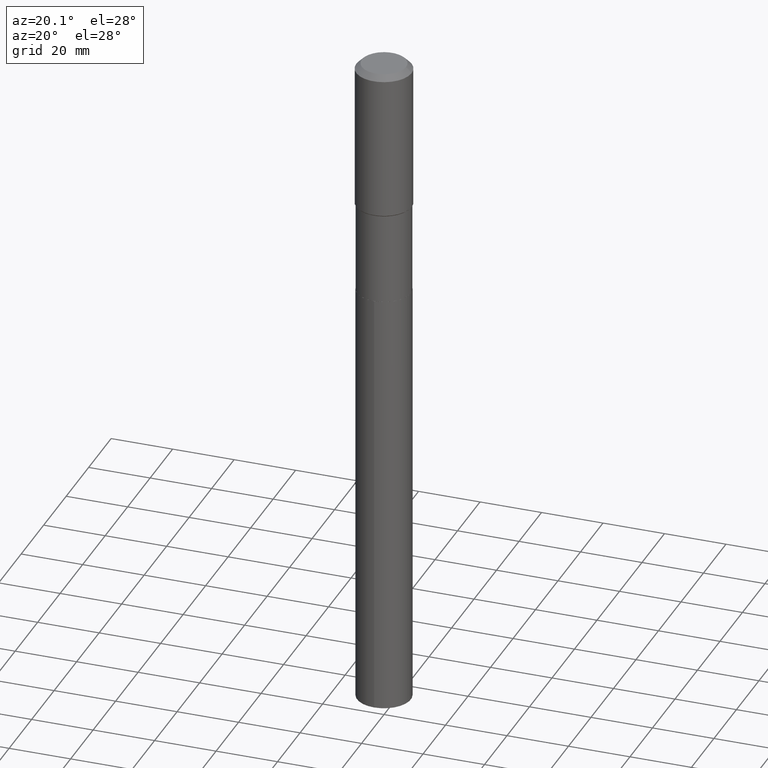
[diagram: clean part render]
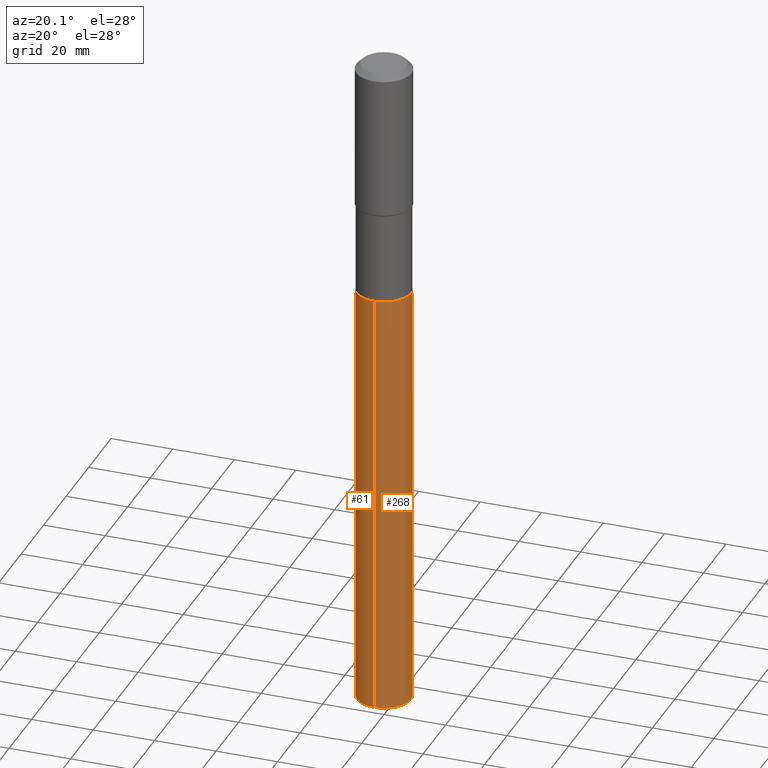
[diagram: same view with one multi-face feature highlighted, each face labeled with its STEP entity id]
A machine part, auxiliary view. The highlighted faces form ONE feature: a constant-radius fillet chain: 2 tangent blend faces with common blend radius 8.7312 mm. The faces share edges in the B-rep.
Their STEP definitions:
[1] entity #268 (Cylinder):
#2 = CARTESIAN_POINT ( 'NONE',  ( -2.400393420454578451E-15, -0.3437500000000107137, -3.070799999999999308 ) ) ;
#4 = DIRECTION ( 'NONE',  ( -2.445451521228947929E-29, 3.491506091884206227E-15, 1.000000000000000000 ) ) ;
#6 = CARTESIAN_POINT ( 'NONE',  ( 2.442490654175555015E-15, 0.3437499999999699130, -8.604693274007365389 ) ) ;
#11 = CARTESIAN_POINT ( 'NONE',  ( 7.509545610033318642E-29, -1.072164089531953388E-14, -3.070800000000000640 ) ) ;
#64 = VERTEX_POINT ( 'NONE', #410 ) ;
#66 = DIRECTION ( 'NONE',  ( -2.445451521228947929E-29, 3.491506091884206622E-15, 1.000000000000000000 ) ) ;
#80 = DIRECTION ( 'NONE',  ( -6.982962677686265922E-15, -1.000000000000000000, 3.178877665354778874E-15 ) ) ;
#88 = LINE ( 'NONE', #2, #390 ) ;
#92 = EDGE_LOOP ( 'NONE', ( #473, #398, #208, #438 ) ) ;
#112 = VECTOR ( 'NONE', #455, 39.37007874015748143 ) ;
#120 = AXIS2_PLACEMENT_3D ( 'NONE', #422, #344, #80 ) ;
#122 = DIRECTION ( 'NONE',  ( -6.982962677686265922E-15, -1.000000000000000000, 3.178877665354778874E-15 ) ) ;
#127 = CIRCLE ( 'NONE', #120, 0.3437500000000000000 ) ;
#140 = CARTESIAN_POINT ( 'NONE',  ( 2.442490654175418936E-15, 0.3437499999999892863, -3.070800000000001528 ) ) ;
#163 = CIRCLE ( 'NONE', #444, 0.3437500000000000000 ) ;
#175 = VERTEX_POINT ( 'NONE', #254 ) ;
#180 = EDGE_CURVE ( 'NONE', #64, #203, #163, .T. ) ;
#188 = FACE_OUTER_BOUND ( 'NONE', #92, .T. ) ;
#203 = VERTEX_POINT ( 'NONE', #6 ) ;
#206 = CARTESIAN_POINT ( 'NONE',  ( -2.400393420454578451E-15, -0.3437500000000107137, -3.070799999999999308 ) ) ;
#208 = ORIENTED_EDGE ( 'NONE', *, *, #226, .F. ) ;
#226 = EDGE_CURVE ( 'NONE', #362, #175, #127, .T. ) ;
#254 = CARTESIAN_POINT ( 'NONE',  ( 2.442490654175555409E-15, 0.3437499999999892863, -3.070800000000001528 ) ) ;
#268 = ADVANCED_FACE ( 'NONE', ( #188 ), #307, .T. ) ;
#293 = AXIS2_PLACEMENT_3D ( 'NONE', #11, #346, #122 ) ;
#307 = CYLINDRICAL_SURFACE ( 'NONE', #293, 0.3437500000000000000 ) ;
#343 = DIRECTION ( 'NONE',  ( -6.982962677686265922E-15, -1.000000000000000000, 3.178877665354778874E-15 ) ) ;
#344 = DIRECTION ( 'NONE',  ( -2.445451521228947929E-29, 3.491506091884206622E-15, 1.000000000000000000 ) ) ;
#346 = DIRECTION ( 'NONE',  ( -2.445451521228947929E-29, 3.491506091884206622E-15, 1.000000000000000000 ) ) ;
#362 = VERTEX_POINT ( 'NONE', #206 ) ;
#364 = LINE ( 'NONE', #140, #112 ) ;
#390 = VECTOR ( 'NONE', #4, 39.37007874015748143 ) ;
#398 = ORIENTED_EDGE ( 'NONE', *, *, #420, .T. ) ;
#406 = CARTESIAN_POINT ( 'NONE',  ( 2.104241333527326859E-28, -3.004326297335327895E-14, -8.604693274007363613 ) ) ;
#410 = CARTESIAN_POINT ( 'NONE',  ( -2.400393420454443161E-15, -0.3437500000000300315, -8.604693274007363613 ) ) ;
#420 = EDGE_CURVE ( 'NONE', #203, #175, #364, .T. ) ;
#422 = CARTESIAN_POINT ( 'NONE',  ( 7.509545610033318642E-29, -1.072164089531953388E-14, -3.070800000000000640 ) ) ;
#432 = EDGE_CURVE ( 'NONE', #64, #362, #88, .T. ) ;
#438 = ORIENTED_EDGE ( 'NONE', *, *, #432, .F. ) ;
#444 = AXIS2_PLACEMENT_3D ( 'NONE', #406, #66, #343 ) ;
#455 = DIRECTION ( 'NONE',  ( -2.445451521228947929E-29, 3.491506091884206227E-15, 1.000000000000000000 ) ) ;
#473 = ORIENTED_EDGE ( 'NONE', *, *, #180, .T. ) ;
[2] entity #61 (Cylinder):
#2 = CARTESIAN_POINT ( 'NONE',  ( -2.400393420454578451E-15, -0.3437500000000107137, -3.070799999999999308 ) ) ;
#4 = DIRECTION ( 'NONE',  ( -2.445451521228947929E-29, 3.491506091884206227E-15, 1.000000000000000000 ) ) ;
#6 = CARTESIAN_POINT ( 'NONE',  ( 2.442490654175555015E-15, 0.3437499999999699130, -8.604693274007365389 ) ) ;
#30 = DIRECTION ( 'NONE',  ( -6.982962677686265922E-15, -1.000000000000000000, 3.178877665354778874E-15 ) ) ;
#54 = ORIENTED_EDGE ( 'NONE', *, *, #432, .T. ) ;
#61 = ADVANCED_FACE ( 'NONE', ( #369 ), #213, .T. ) ;
#64 = VERTEX_POINT ( 'NONE', #410 ) ;
#88 = LINE ( 'NONE', #2, #390 ) ;
#97 = EDGE_LOOP ( 'NONE', ( #478, #396, #54, #393 ) ) ;
#111 = DIRECTION ( 'NONE',  ( -6.982962677686265922E-15, -1.000000000000000000, 3.178877665354778874E-15 ) ) ;
#112 = VECTOR ( 'NONE', #455, 39.37007874015748143 ) ;
#115 = EDGE_CURVE ( 'NONE', #175, #362, #402, .T. ) ;
#140 = CARTESIAN_POINT ( 'NONE',  ( 2.442490654175418936E-15, 0.3437499999999892863, -3.070800000000001528 ) ) ;
#154 = DIRECTION ( 'NONE',  ( -6.982962677686265922E-15, -1.000000000000000000, 3.178877665354778874E-15 ) ) ;
#175 = VERTEX_POINT ( 'NONE', #254 ) ;
#176 = DIRECTION ( 'NONE',  ( -2.445451521228947929E-29, 3.491506091884206622E-15, 1.000000000000000000 ) ) ;
#178 = CIRCLE ( 'NONE', #409, 0.3437500000000000000 ) ;
#203 = VERTEX_POINT ( 'NONE', #6 ) ;
#206 = CARTESIAN_POINT ( 'NONE',  ( -2.400393420454578451E-15, -0.3437500000000107137, -3.070799999999999308 ) ) ;
#213 = CYLINDRICAL_SURFACE ( 'NONE', #230, 0.3437500000000000000 ) ;
#230 = AXIS2_PLACEMENT_3D ( 'NONE', #413, #487, #111 ) ;
#243 = CARTESIAN_POINT ( 'NONE',  ( 2.104241333527326859E-28, -3.004326297335327895E-14, -8.604693274007363613 ) ) ;
#254 = CARTESIAN_POINT ( 'NONE',  ( 2.442490654175555409E-15, 0.3437499999999892863, -3.070800000000001528 ) ) ;
#303 = AXIS2_PLACEMENT_3D ( 'NONE', #376, #338, #154 ) ;
#338 = DIRECTION ( 'NONE',  ( -2.445451521228947929E-29, 3.491506091884206622E-15, 1.000000000000000000 ) ) ;
#345 = EDGE_CURVE ( 'NONE', #203, #64, #178, .T. ) ;
#362 = VERTEX_POINT ( 'NONE', #206 ) ;
#364 = LINE ( 'NONE', #140, #112 ) ;
#369 = FACE_OUTER_BOUND ( 'NONE', #97, .T. ) ;
#376 = CARTESIAN_POINT ( 'NONE',  ( 7.509545610033318642E-29, -1.072164089531953388E-14, -3.070800000000000640 ) ) ;
#390 = VECTOR ( 'NONE', #4, 39.37007874015748143 ) ;
#393 = ORIENTED_EDGE ( 'NONE', *, *, #115, .F. ) ;
#396 = ORIENTED_EDGE ( 'NONE', *, *, #345, .T. ) ;
#402 = CIRCLE ( 'NONE', #303, 0.3437500000000000000 ) ;
#409 = AXIS2_PLACEMENT_3D ( 'NONE', #243, #176, #30 ) ;
#410 = CARTESIAN_POINT ( 'NONE',  ( -2.400393420454443161E-15, -0.3437500000000300315, -8.604693274007363613 ) ) ;
#413 = CARTESIAN_POINT ( 'NONE',  ( 7.509545610033318642E-29, -1.072164089531953388E-14, -3.070800000000000640 ) ) ;
#420 = EDGE_CURVE ( 'NONE', #203, #175, #364, .T. ) ;
#432 = EDGE_CURVE ( 'NONE', #64, #362, #88, .T. ) ;
#455 = DIRECTION ( 'NONE',  ( -2.445451521228947929E-29, 3.491506091884206227E-15, 1.000000000000000000 ) ) ;
#478 = ORIENTED_EDGE ( 'NONE', *, *, #420, .F. ) ;
#487 = DIRECTION ( 'NONE',  ( -2.445451521228947929E-29, 3.491506091884206622E-15, 1.000000000000000000 ) ) ;